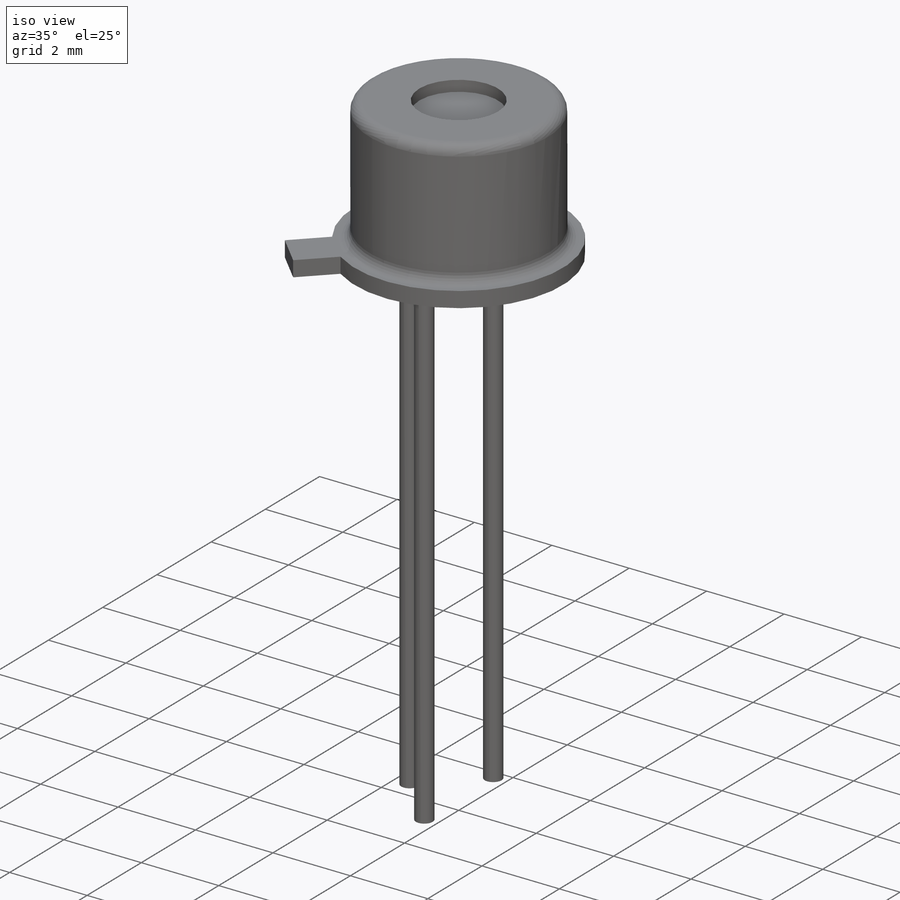
[diagram: iso view]
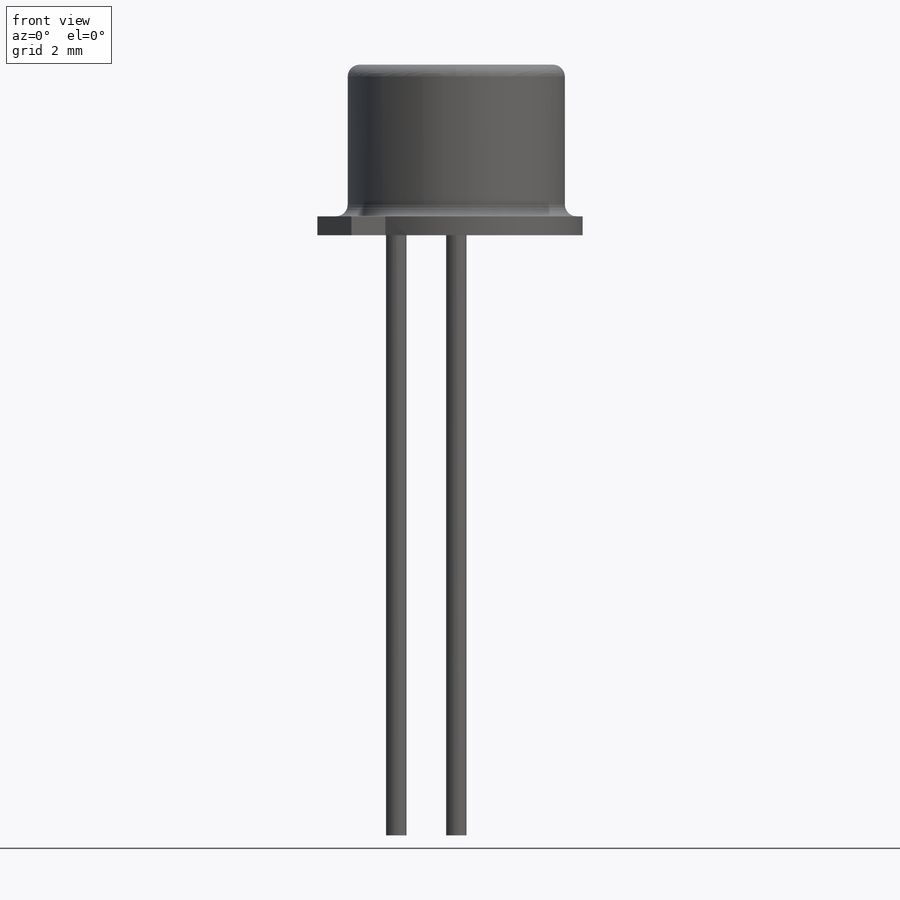
[diagram: front view]
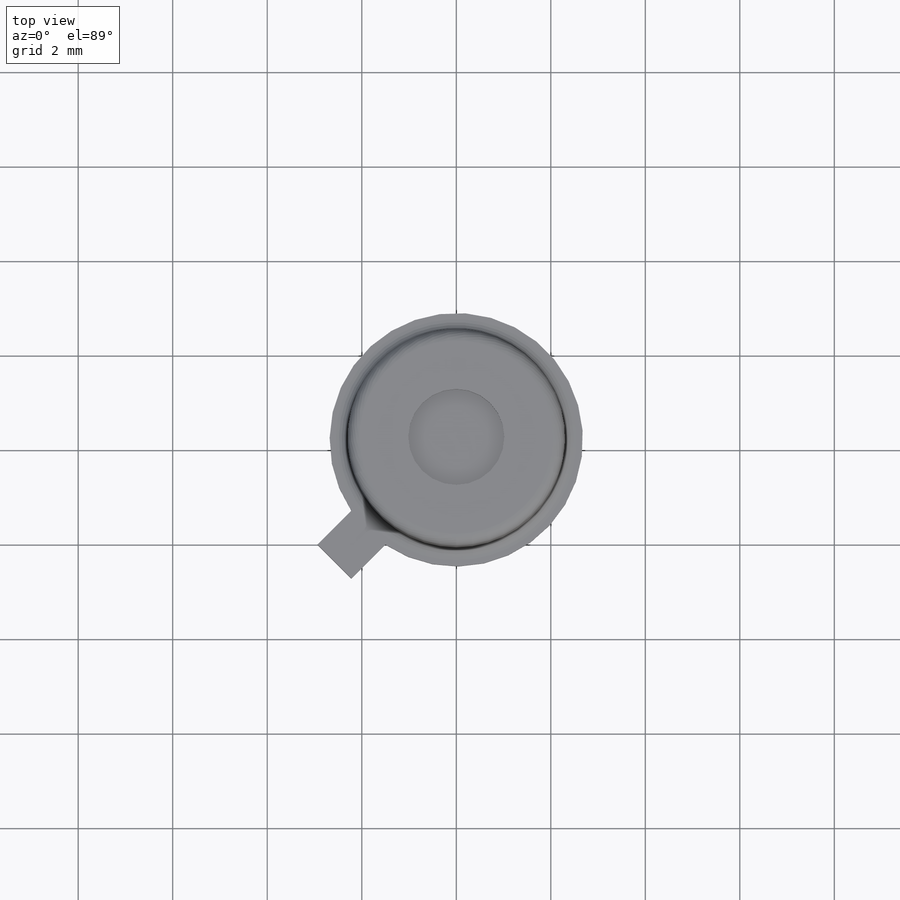
[diagram: top view]
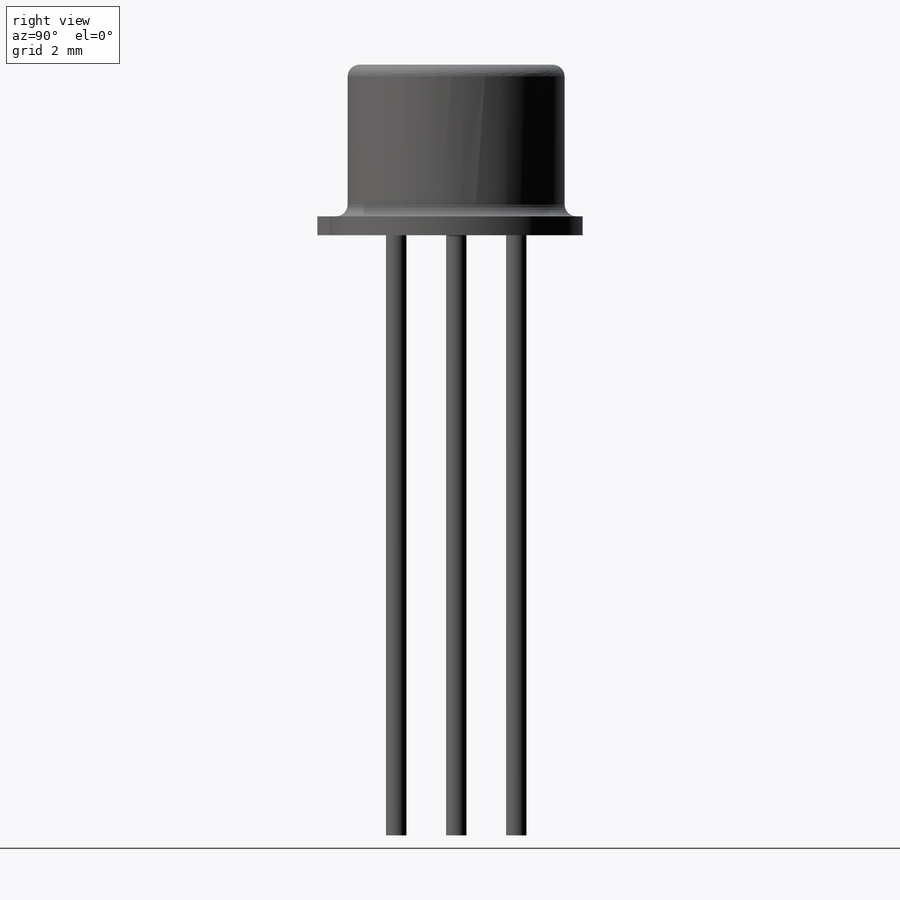
[diagram: right view]
SOLIDWORKS PART (.sldprt)
format: sldprt  version: not decoded by parser v0  size: 246,272 bytes
history: native  units: mm
features: sketch x7, extrude x3, cut_extrude x3, material x1, fillet x1 (+13 scaffold rows collapsed)
feature tree (28):
  scaffold x13  (default folders/planes/origin — collapsed)
  material  "Material <not specified>"
  sketch  "Sketch1"  dims[c1.D3=2.68mm c1.D1=~52.017139mm c2.D1=45.0deg c2.D2=1.016mm c2.D4=1.016mm]
  extrude  "Boss-Extrude1"  Depth=0.4mm
  sketch  "Sketch3"  dims[D1=4.5974mm]
  extrude  "Boss-Extrude2"  Depth=3.21mm
  sketch  "Sketch4"  dims[D1=2.032mm]
  cut_extrude  "Cut-Extrude1"  Depth=0.2794mm
  sketch  "Sketch6"  dims[D1=0.4318mm D2=2.54mm]
  extrude  "Boss-Extrude3"  Depth=12.7mm
  sketch  "Sketch7"  dims[D1=0.0mm]
  cut_extrude  "Cut-Extrude3"  [1 undecoded]
  fillet  "Fillet1"  Radius=0.25mm
  sketch  "Sketch5"  dims[D1=1.75mm]
  cut_extrude  "Window thickness"  Depth=0.381mm
  sketch  "Sketch9"  dims[D1=4.0mm]
decode coverage: 13 of 14 modeling features carry decoded parameters
note: ~ marks probable driven/reference dimensions
note: 1 parameter value undecoded
note: suppression state not decoded; provenance and decode notes live in map.json
